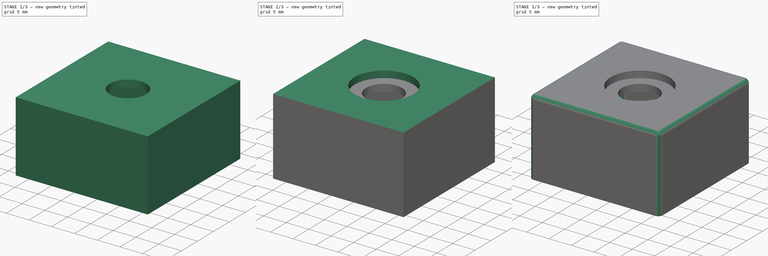
[diagram: build sequence overview — one tinted view per stage of 3, left to right]
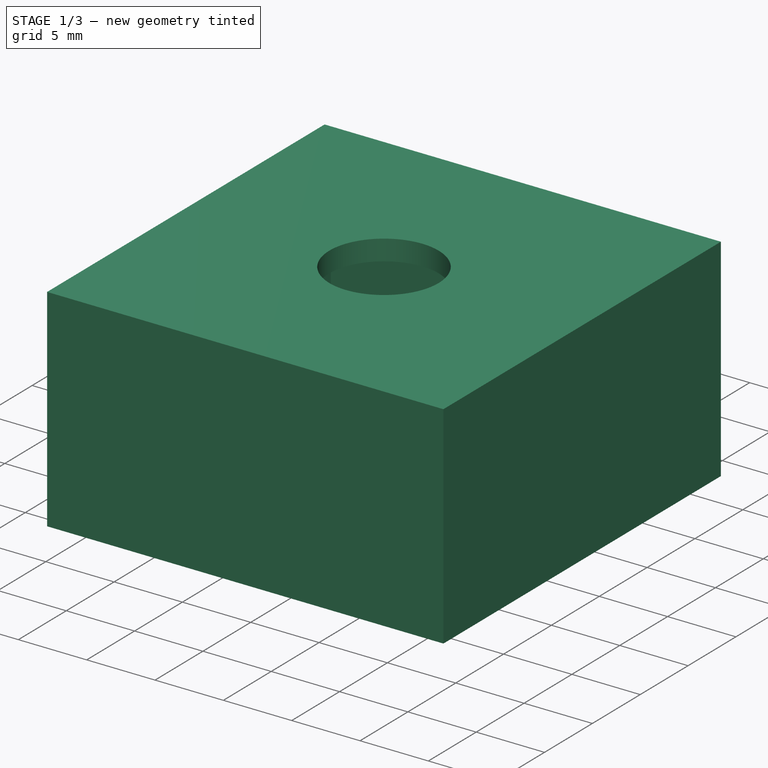
[diagram: stage 1 of 3 — iso view after this stage's code; geometry added in this stage tinted green]
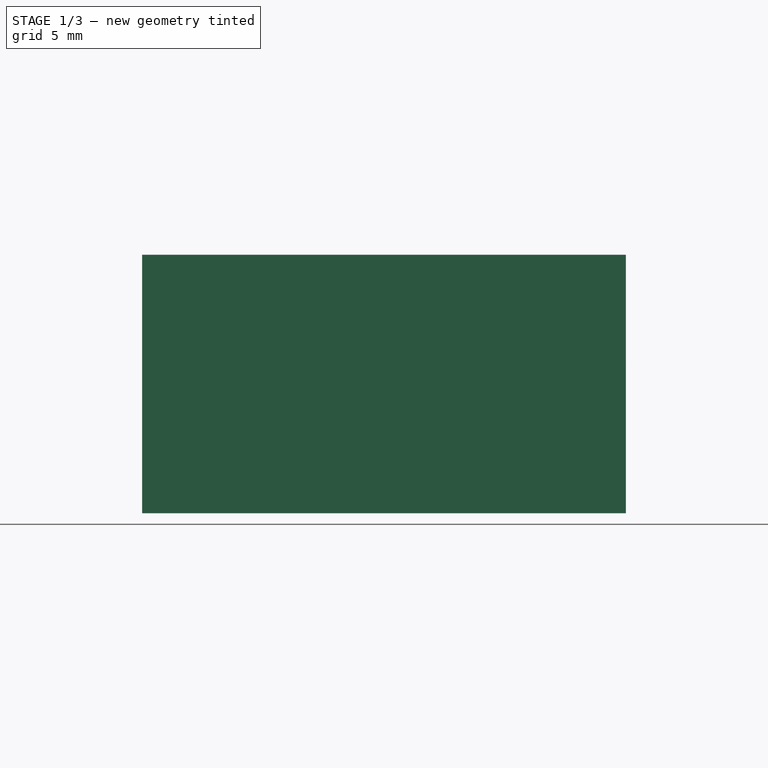
[diagram: stage 1 of 3 — front view after this stage's code; geometry added in this stage tinted green]
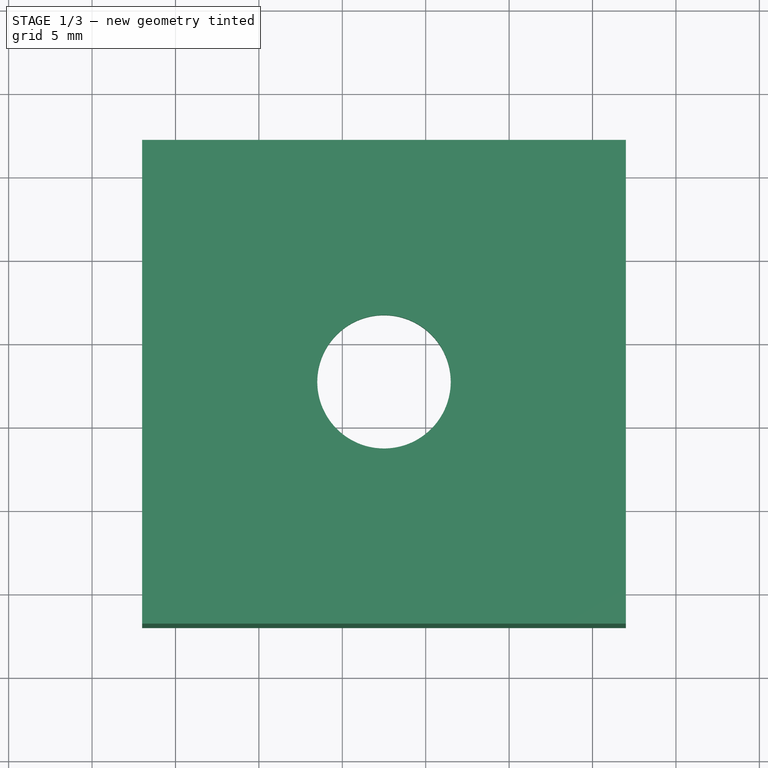
[diagram: stage 1 of 3 — top view after this stage's code; geometry added in this stage tinted green]
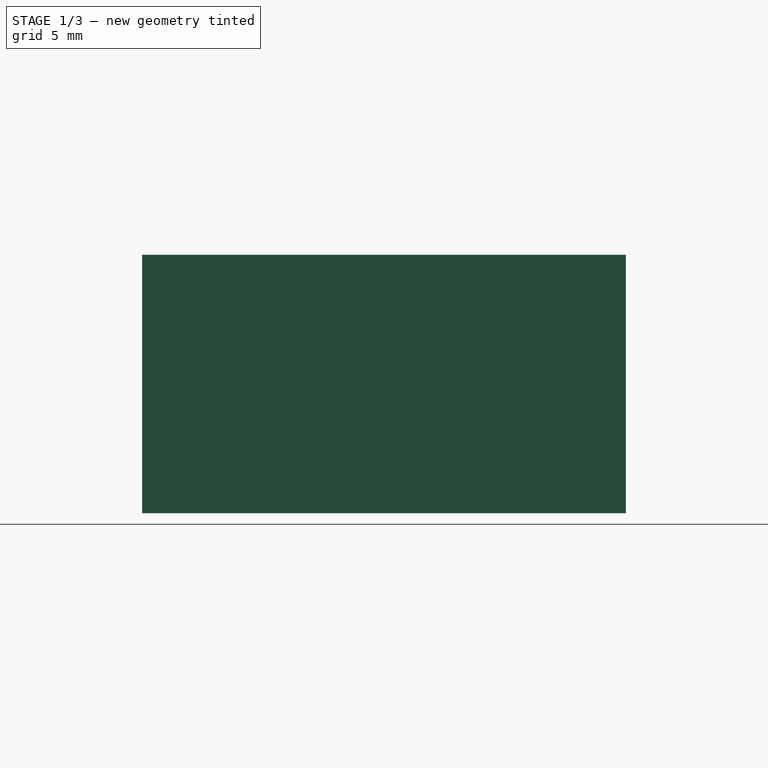
[diagram: stage 1 of 3 — right view after this stage's code; geometry added in this stage tinted green]
FCSTD DOCUMENT  (FreeCAD 1.0R39319 (Git))
Label: case
License: All rights reserved
LicenseURL: http://en.wikipedia.org/wiki/All_rights_reserved
objects: Part::Feature×21, App::Part×3, Sketcher::SketchObject×3, PartDesign::Pad×3, PartDesign::Fillet×2, PartDesign::Body×1
note: 43 computed .brp shape members not serialized (recipe doc carries the construction recipe); baked Part::Feature solids carry a one-line shape summary decoded from their .brp

FEATURE [Part::Feature] Part__Feature  label="Shaft"
  Placement = pos=(0,0,13.6) rot=(0,0,1;0rad)
  shape: bbox 6 x 6 x 18 mm, 14 faces (baked)
FEATURE [Part::Feature] Part__Feature001  label="MetalBody"
  Placement = pos=(0,0,3.44301) rot=(0,0,1;0rad)
  shape: bbox 11.87 x 13.97 x 9.574 mm, 135 faces (baked)
FEATURE [Part::Feature] Part__Feature002  label="PlasticBody"
  Placement = pos=(-0.85,-0.643563,6.58917) rot=(0,0,1;0rad)
  shape: bbox 11.7 x 13.3 x 3.9 mm, 60 faces (baked)
FEATURE [Part::Feature] Part__Feature003  label="Imported"
  Placement = pos=(-2.5,7.575,-10.2243) rot=(0,0,-1;1.5708rad)
  shape: bbox 1.501 x 2.336 x 6.651 mm, 36 faces, 2 solids (baked)
FEATURE [Part::Feature] Part__Feature004  label="Imported001"
  Placement = pos=(0,7.575,-10.2243) rot=(0,0,-1;1.5708rad)
  shape: bbox 1.501 x 2.336 x 6.651 mm, 36 faces, 2 solids (baked)
FEATURE [Part::Feature] Part__Feature005  label="Imported002"
  Placement = pos=(2.5,7.575,-10.2243) rot=(0,0,-1;1.5708rad)
  shape: bbox 1.501 x 2.336 x 6.651 mm, 36 faces, 2 solids (baked)
FEATURE [Part::Feature] Part__Feature006  label="Pin001"
  Placement = pos=(-2.5,-7.075,-10.2243) rot=(0,0,1;1.5708rad)
  shape: bbox 1.5 x 2.151 x 4.727 mm, 30 faces (baked)
FEATURE [Part::Feature] Part__Feature007  label="Pin002"
  Placement = pos=(2.5,-7.075,-10.2243) rot=(0,0,1;1.5708rad)
  shape: bbox 1.5 x 2.151 x 4.727 mm, 30 faces (baked)
FEATURE [Part::Feature] Part__Feature008  label="Sheet_Metal_Part53"
  Placement = pos=(-24.7094,3.82455,8.4125) rot=(0,0,1;0rad)
  shape: bbox 13.1 x 9.901 x 9.18 mm, 139 faces (baked)
FEATURE [App::Part] Pins
  Group = -> [Part__Feature003,Part__Feature004,Part__Feature005,Part__Feature006,Part__Feature007,Part__Feature008]
  Origin = -> Origin
  Placement = pos=(0,0,6.6326) rot=(0,0,1;0rad)
FEATURE [App::Part] EC11
  Group = -> [Part__Feature,Part__Feature001,Part__Feature002,Pins]
  Origin = -> Origin001
  Placement = pos=(62.5,-62.5,1.595) rot=(0,0,1;3.14159rad)
FEATURE [Part::Feature] Part__Feature009  label="C_0603_1608Metric"
  Placement = pos=(63.7,-72.6,1.595) rot=(0,0,1;3.14159rad)
  shape: bbox 1.6 x 0.8 x 0.8 mm, 28 faces (baked)
FEATURE [Part::Feature] Part__Feature010  label="C_0603_1608Metric001"
  Placement = pos=(59,-52.9,1.595) rot=(0,0,1;3.14159rad)
  shape: bbox 1.6 x 0.8 x 0.8 mm, 28 faces (baked)
FEATURE [Part::Feature] Part__Feature011  label="R_0603_1608Metric"
  Placement = pos=(67.6,-72.6,1.595) rot=(0,0,1;3.14159rad)
  shape: bbox 1.6 x 0.8 x 0.45 mm, 26 faces (baked)
FEATURE [Part::Feature] Part__Feature012  label="R_0603_1608Metric001"
  Placement = pos=(62.9,-52.9,1.595) rot=(0,0,1;3.14159rad)
  shape: bbox 1.6 x 0.8 x 0.45 mm, 26 faces (baked)
FEATURE [Part::Feature] Part__Feature013  label="SOT-23-6"
  Placement = pos=(62.5,-62.5,-0.085) rot=(0,1,0;3.14159rad)
  shape: bbox 2.8 x 2.9 x 1.55 mm, 124 faces (baked)
FEATURE [Part::Feature] Part__Feature014  label="C_0603_1608Metric002"
  Placement = pos=(60.9,-72.6,-0.085) rot=(1,0,0;3.14159rad)
  shape: bbox 1.6 x 0.8 x 0.8 mm, 28 faces (baked)
FEATURE [Part::Feature] Part__Feature015  label="C_0603_1608Metric003"
  Placement = pos=(57.5,-66.55,-0.085) rot=(0.707107,-0.707107,0;3.14159rad)
  shape: bbox 0.8 x 1.6 x 0.8 mm, 28 faces (baked)
FEATURE [Part::Feature] Part__Feature016  label="R_0603_1608Metric002"
  Placement = pos=(61.1,-66.6,-0.085) rot=(0.707107,-0.707107,0;3.14159rad)
  shape: bbox 0.8 x 1.6 x 0.45 mm, 26 faces (baked)
FEATURE [Part::Feature] Part__Feature017  label="desklight_copper"
  shape: bbox 24.09 x 24.09 x 1.684 mm, 1061 faces, 14 solids (baked)
FEATURE [Part::Feature] Part__Feature018  label="desklight_silkscreen"
  shape: bbox 23.08 x 23.8 x 1.66 mm, 100 faces, 0 solids (baked)
FEATURE [Part::Feature] Part__Feature019  label="desklight_soldermask"
  shape: bbox 25 x 25 x 1.61 mm, 2 faces, 0 solids (baked)
FEATURE [Part::Feature] Part__Feature020  label="desklight_PCB"
  shape: bbox 25 x 25 x 1.51 mm, 36 faces (baked)
FEATURE [App::Part] desklight_1  label="desklight 1"
  Group = -> [EC11,Part__Feature009,Part__Feature010,Part__Feature011,Part__Feature012,Part__Feature013,Part__Feature014,Part__Feature015,Part__Feature016,Part__Feature017,Part__Feature018,Part__Feature019,Part__Feature020]
  Origin = -> Origin002
FEATURE [Sketcher::SketchObject] Sketch
  ArcFitTolerance = 1e-06
  AttachmentSupport = -> [XY_Plane003]
  FullyConstrained = true
  MakeInternals = false
  MapMode = 5
  sketch-geometry (10):
    g0: LineSegment StartX=48 StartY=-48 StartZ=0 EndX=48 EndY=-77 EndZ=0
    g1: LineSegment StartX=48 StartY=-77 StartZ=0 EndX=77 EndY=-77 EndZ=0
    g2: LineSegment StartX=77 StartY=-77 StartZ=0 EndX=77 EndY=-48 EndZ=0
    g3: LineSegment StartX=77 StartY=-48 StartZ=0 EndX=48 EndY=-48 EndZ=0
    g4: LineSegment [constr] StartX=48 StartY=-48 StartZ=0 EndX=48 EndY=0 EndZ=0
    g5: LineSegment [constr] StartX=48 StartY=-48 StartZ=0 EndX=0 EndY=-48 EndZ=0
    g6: LineSegment StartX=49.5 StartY=-49.5 StartZ=0 EndX=49.5 EndY=-75.5 EndZ=0
    g7: LineSegment StartX=49.5 StartY=-75.5 StartZ=0 EndX=75.5 EndY=-75.5 EndZ=0
    g8: LineSegment StartX=75.5 StartY=-75.5 StartZ=0 EndX=75.5 EndY=-49.5 EndZ=0
    g9: LineSegment StartX=75.5 StartY=-49.5 StartZ=0 EndX=49.5 EndY=-49.5 EndZ=0
  constraints (30):
    c: Coincident(g0,g1)
    c: Coincident(g1,g2)
    c: Coincident(g2,g3)
    c: Coincident(g3,g0)
    c: Vertical(g0)
    c: Vertical(g2)
    c: Horizontal(g1)
    c: Horizontal(g3)
    c: DistanceX(g3,g3) = 29
    c: Equal(g2,g3)
    c: Coincident(g4,g0)
    c: PointOnObject(g4,g-1)
    c: Vertical(g4)
    c: Coincident(g5,g0)
    c: PointOnObject(g5,g-2)
    c: Horizontal(g5)
    c: Equal(g5,g4)
    c: DistanceX(g5,g5) = 48
    c: Coincident(g6,g7)
    c: Coincident(g7,g8)
    c: Coincident(g8,g9)
    c: Coincident(g9,g6)
    c: Vertical(g6)
    c: Vertical(g8)
    c: Horizontal(g7)
    c: Horizontal(g9)
    c: Distance(g3,g9) = 1.5
    c: Distance(g2,g8) = 1.5
    c: Distance(g1,g7) = 1.5
    c: Distance(g0,g6) = 1.5
FEATURE [PartDesign::Pad] Pad
  Direction = (0,0,1)
  Length = 9
  Length2 = 5
  Profile = -> Sketch
  ReferenceAxis = -> Sketch [N_Axis]
  Refine = true
  Suppressed = false
  Type = 4
FEATURE [Sketcher::SketchObject] Sketch001
  ArcFitTolerance = 1e-06
  AttachmentSupport = -> [Pad]
  ExternalGeometry = -> [Pad]
  FullyConstrained = true
  MakeInternals = false
  MapMode = 5
  Placement = pos=(0,0,9) rot=(0,0,1;0rad)
  sketch-geometry (7):
    g0: LineSegment StartX=48 StartY=-48 StartZ=0 EndX=48 EndY=-77 EndZ=0
    g1: LineSegment StartX=48 StartY=-77 StartZ=0 EndX=77 EndY=-77 EndZ=0
    g2: LineSegment StartX=77 StartY=-77 StartZ=0 EndX=77 EndY=-48 EndZ=0
    g3: LineSegment StartX=77 StartY=-48 StartZ=0 EndX=48 EndY=-48 EndZ=0
    g4: Circle CenterX=62.5 CenterY=-62.5 CenterZ=0 NormalX=0 NormalY=0 NormalZ=1 AngleXU=0 Radius=4
    g5: LineSegment [constr] StartX=48 StartY=-77 StartZ=0 EndX=77 EndY=-48 EndZ=0
    g6: LineSegment [constr] StartX=48 StartY=-48 StartZ=0 EndX=77 EndY=-77 EndZ=0
  constraints (17):
    c: Coincident(g0,g1)
    c: Coincident(g1,g2)
    c: Coincident(g2,g3)
    c: Coincident(g3,g0)
    c: Vertical(g0)
    c: Vertical(g2)
    c: Horizontal(g1)
    c: Horizontal(g3)
    c: Coincident(g0,g-3)
    c: Coincident(g1,g-4)
    c: Coincident(g5,g0)
    c: Coincident(g5,g2)
    c: Coincident(g6,g0)
    c: Coincident(g6,g1)
    c: PointOnObject(g4,g6)
    c: PointOnObject(g4,g5)
    c: Diameter(g4) = 8
FEATURE [PartDesign::Pad] Pad001
  BaseFeature = -> Pad
  Direction = (0,0,1)
  Length = 1.5
  Length2 = 10
  Profile = -> Sketch001
  ReferenceAxis = -> Sketch001 [N_Axis]
  Refine = true
  Suppressed = false
  Type = 0
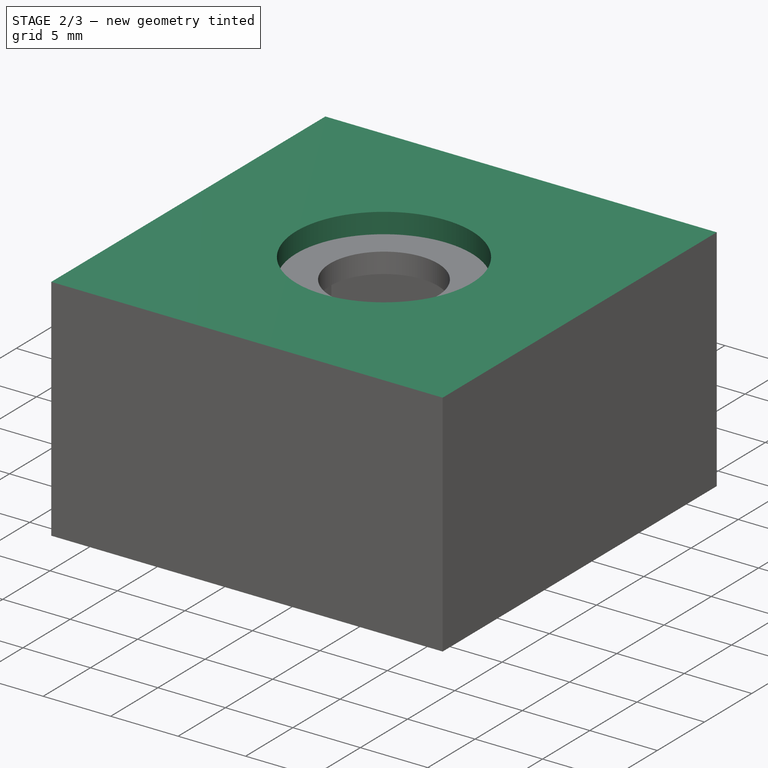
[diagram: stage 2 of 3 — iso view after this stage's code; geometry added in this stage tinted green]
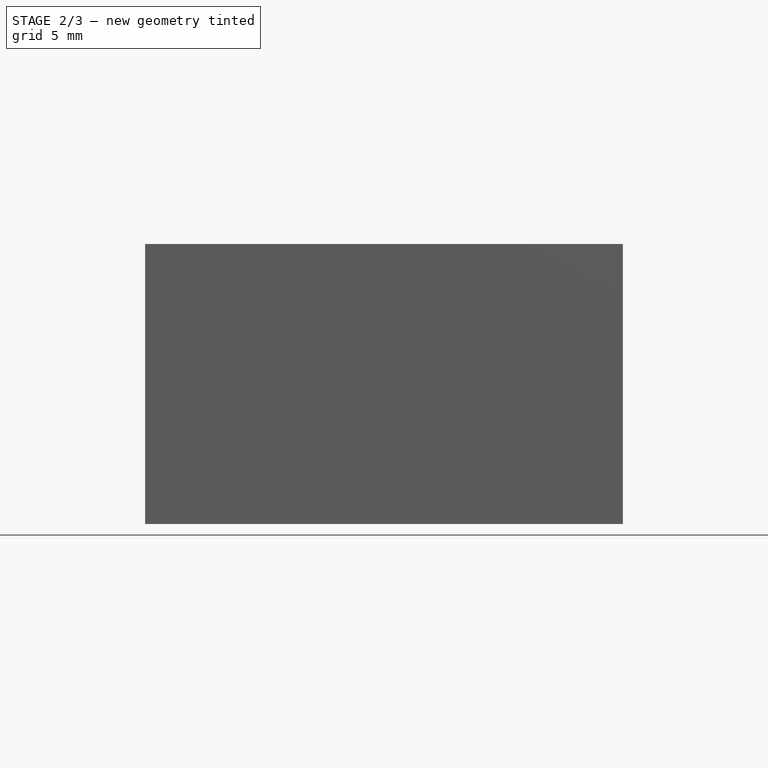
[diagram: stage 2 of 3 — front view after this stage's code; geometry added in this stage tinted green]
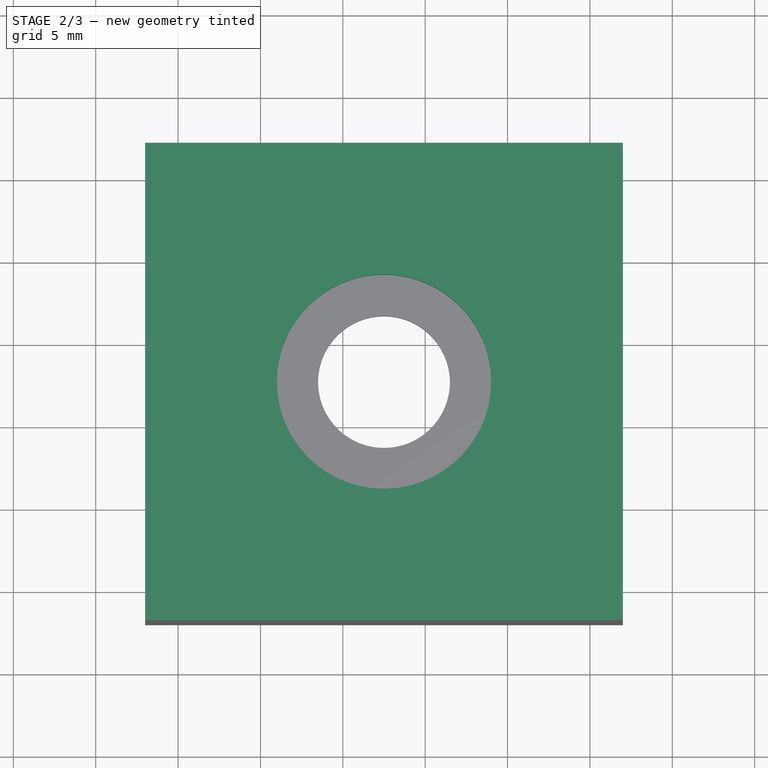
[diagram: stage 2 of 3 — top view after this stage's code; geometry added in this stage tinted green]
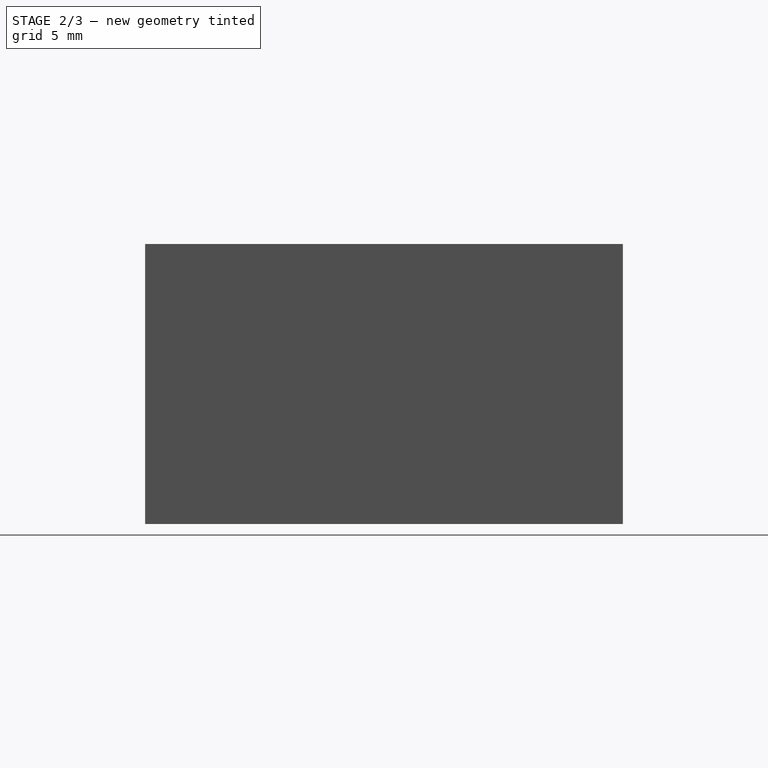
[diagram: stage 2 of 3 — right view after this stage's code; geometry added in this stage tinted green]
FEATURE [Sketcher::SketchObject] Sketch002
  ArcFitTolerance = 1e-06
  AttachmentSupport = -> [Pad001]
  ExternalGeometry = -> [Pad001]
  FullyConstrained = true
  MakeInternals = false
  MapMode = 5
  Placement = pos=(0,0,10.5) rot=(0,0,1;0rad)
  sketch-geometry (7):
    g0: LineSegment StartX=48 StartY=-48 StartZ=0 EndX=48 EndY=-77 EndZ=0
    g1: LineSegment StartX=48 StartY=-77 StartZ=0 EndX=77 EndY=-77 EndZ=0
    g2: LineSegment StartX=77 StartY=-77 StartZ=0 EndX=77 EndY=-48 EndZ=0
    g3: LineSegment StartX=77 StartY=-48 StartZ=0 EndX=48 EndY=-48 EndZ=0
    g4: LineSegment [constr] StartX=48 StartY=-48 StartZ=0 EndX=77 EndY=-77 EndZ=0
    g5: LineSegment [constr] StartX=77 StartY=-48 StartZ=0 EndX=48 EndY=-77 EndZ=0
    g6: Circle CenterX=62.5 CenterY=-62.5 CenterZ=0 NormalX=0 NormalY=0 NormalZ=1 AngleXU=0 Radius=6.5
  constraints (16):
    c: Coincident(g0,g1)
    c: Coincident(g1,g2)
    c: Coincident(g2,g3)
    c: Coincident(g3,g0)
    c: Vertical(g0)
    c: Vertical(g2)
    c: Horizontal(g1)
    c: Horizontal(g3)
    c: Coincident(g0,g-3)
    c: Coincident(g1,g-4)
    c: Coincident(g4,g0)
    c: Coincident(g4,g1)
    c: Coincident(g5,g2)
    c: Coincident(g5,g0)
    c: Symmetric(g4,g4,g6)
    c: Diameter(g6) = 13
FEATURE [PartDesign::Pad] Pad002
  BaseFeature = -> Pad001
  Direction = (0,0,1)
  Length = 1.5
  Length2 = 10
  Profile = -> Sketch002
  ReferenceAxis = -> Sketch002 [N_Axis]
  Refine = true
  Suppressed = false
  Type = 0
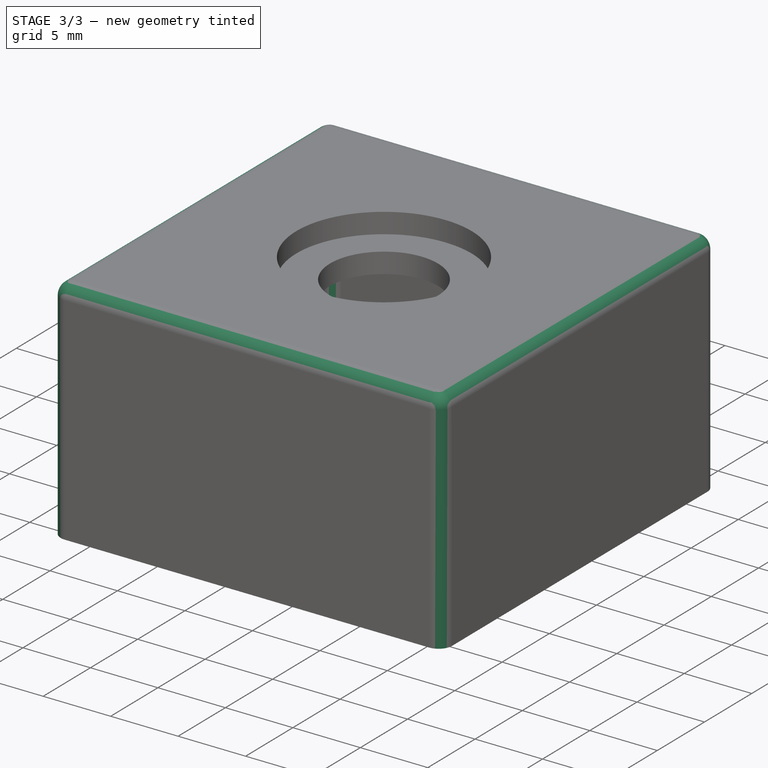
[diagram: stage 3 of 3 — iso view after this stage's code; geometry added in this stage tinted green]
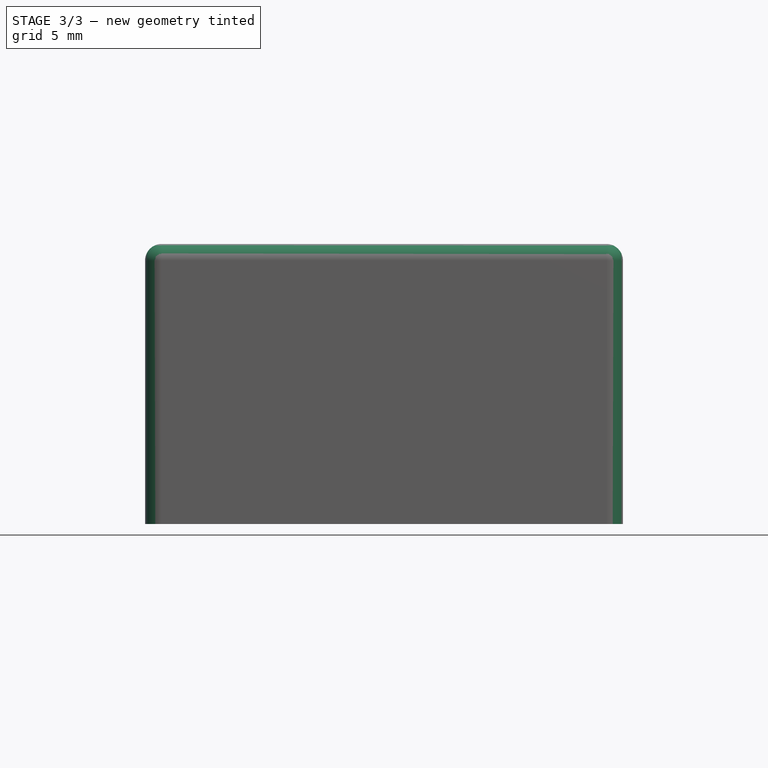
[diagram: stage 3 of 3 — front view after this stage's code; geometry added in this stage tinted green]
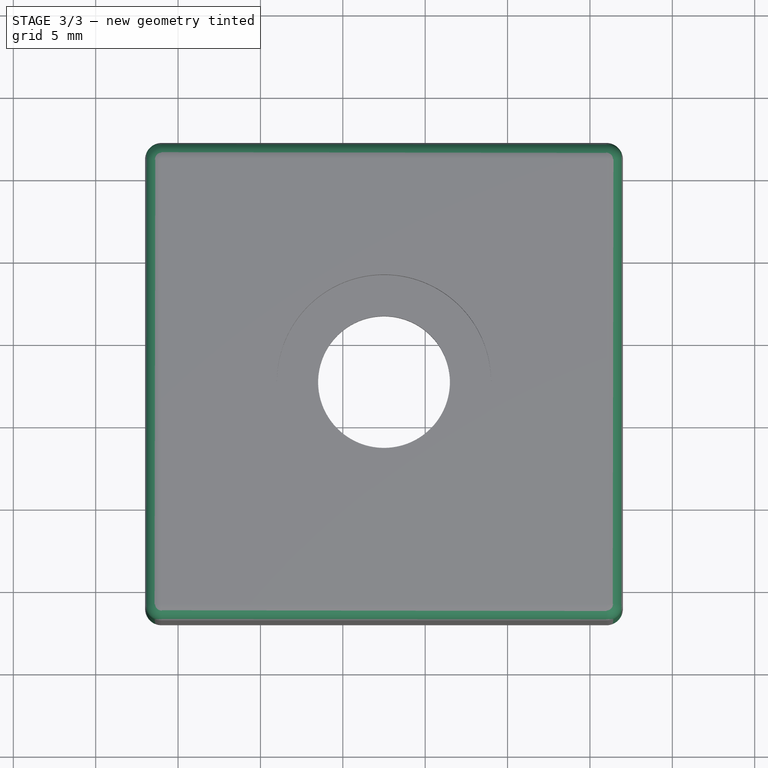
[diagram: stage 3 of 3 — top view after this stage's code; geometry added in this stage tinted green]
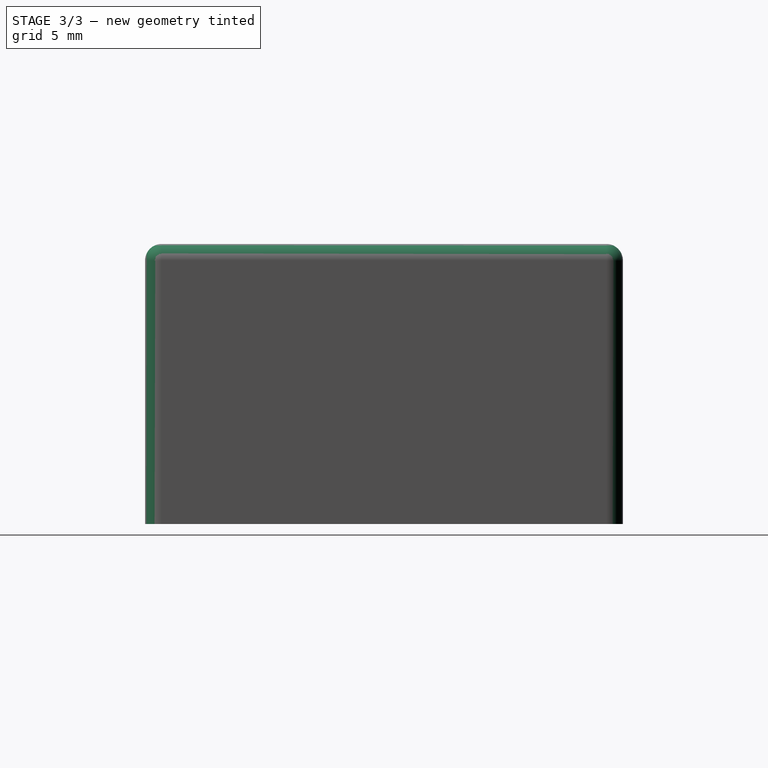
[diagram: stage 3 of 3 — right view after this stage's code; geometry added in this stage tinted green]
FEATURE [PartDesign::Fillet] Fillet
  Base = -> Pad002 [Edge20,Edge22,Edge18,Edge17]
  BaseFeature = -> Pad002
  Radius = 0.75
  Refine = true
  SupportTransform = false
  Suppressed = false
  UseAllEdges = false
FEATURE [PartDesign::Fillet] Fillet001
  Base = -> Fillet [Edge34,Edge31,Edge32,Edge29,Edge33,Edge30,Edge35,Edge36]
  BaseFeature = -> Fillet
  Radius = 1
  Refine = true
  SupportTransform = false
  Suppressed = false
  UseAllEdges = false
FEATURE [PartDesign::Body] Body
  AllowCompound = false
  Group = -> [Sketch,Pad,Sketch001,Pad001,Sketch002,Pad002,Fillet,Fillet001]
  Origin = -> Origin003
  Tip = -> Fillet001
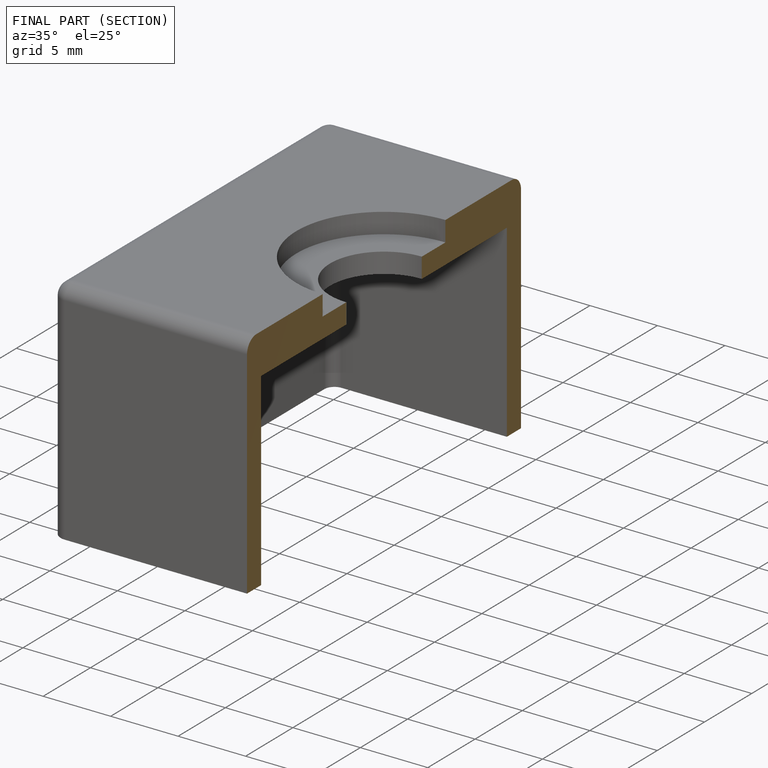
[diagram: finished part — half-section view (interior)]
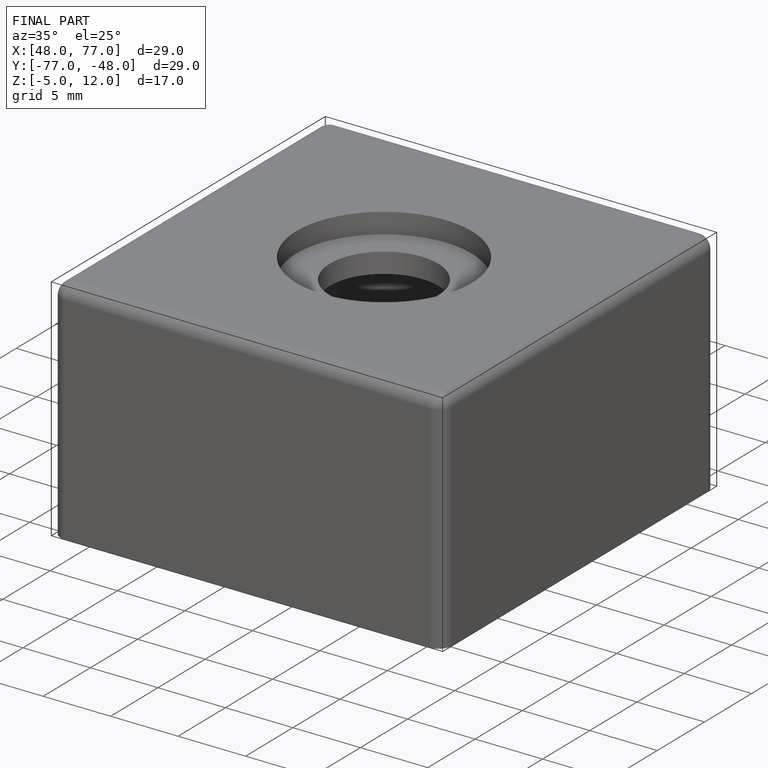
[diagram: finished part — iso view with bounding-box wireframe]
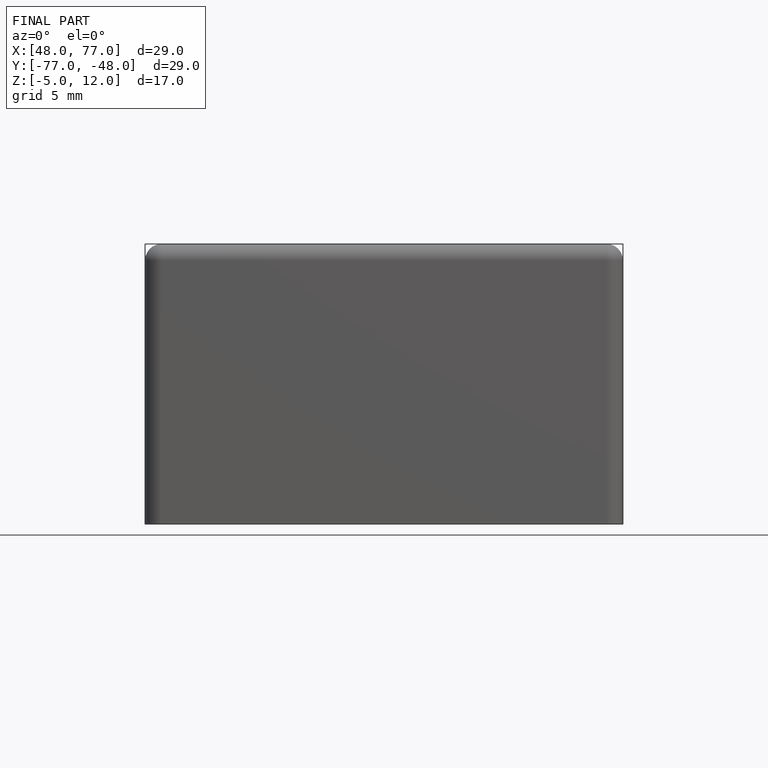
[diagram: finished part — front view with bounding-box wireframe]
